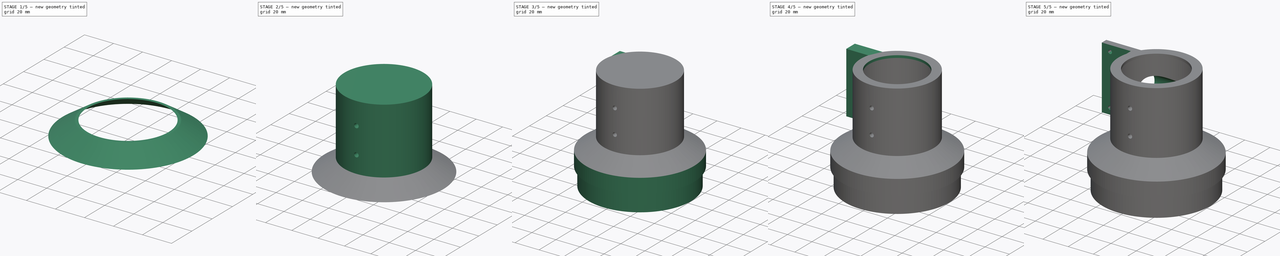
[diagram: build sequence overview — one tinted view per stage of 5, left to right]
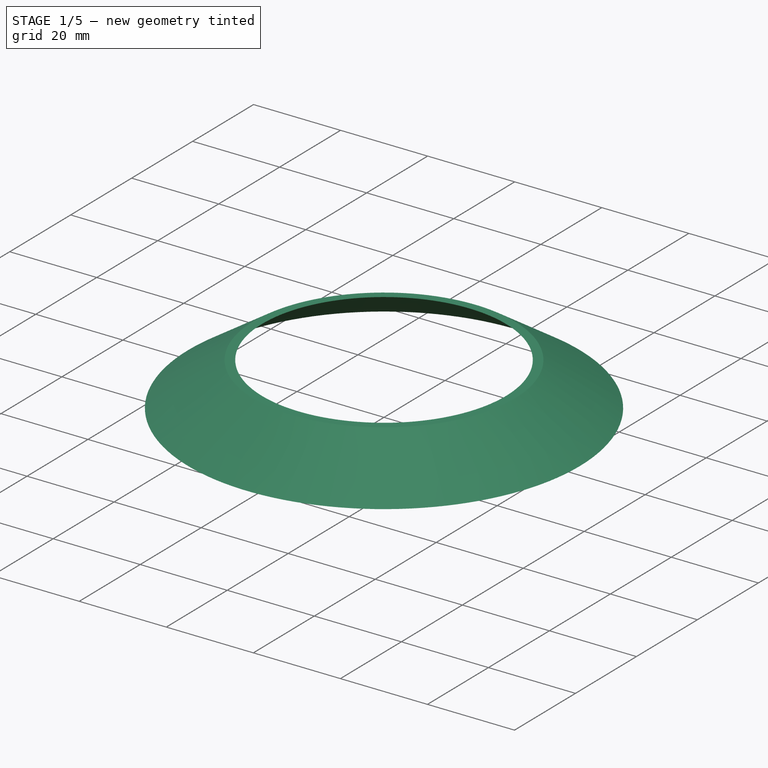
[diagram: stage 1 of 5 — iso view after this stage's code; geometry added in this stage tinted green]
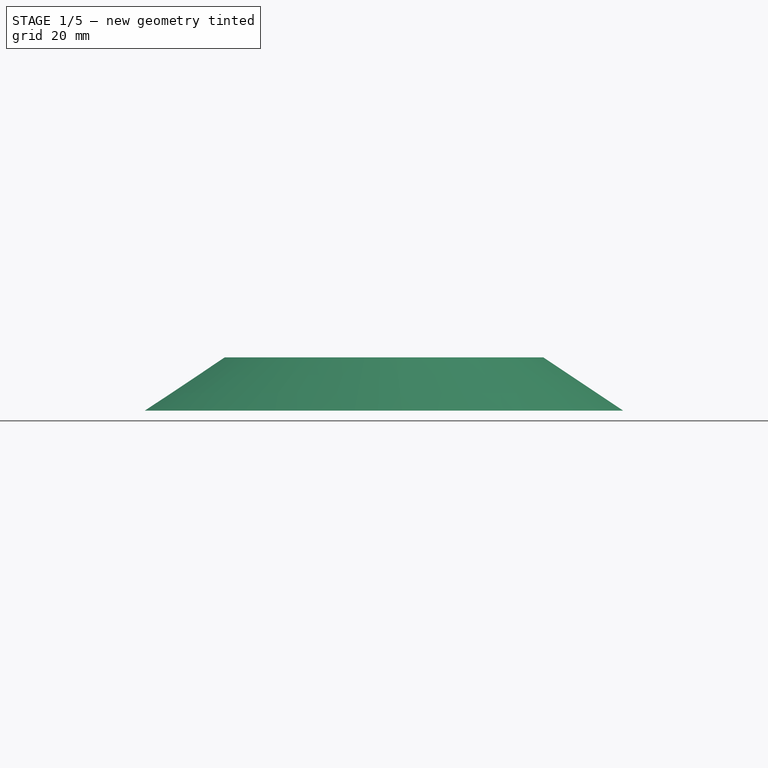
[diagram: stage 1 of 5 — front view after this stage's code; geometry added in this stage tinted green]
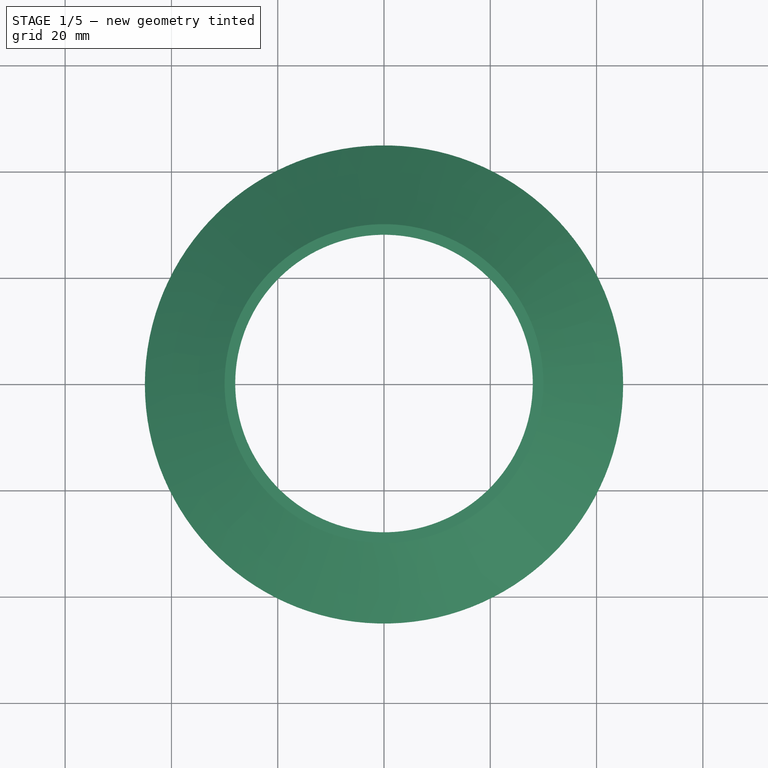
[diagram: stage 1 of 5 — top view after this stage's code; geometry added in this stage tinted green]
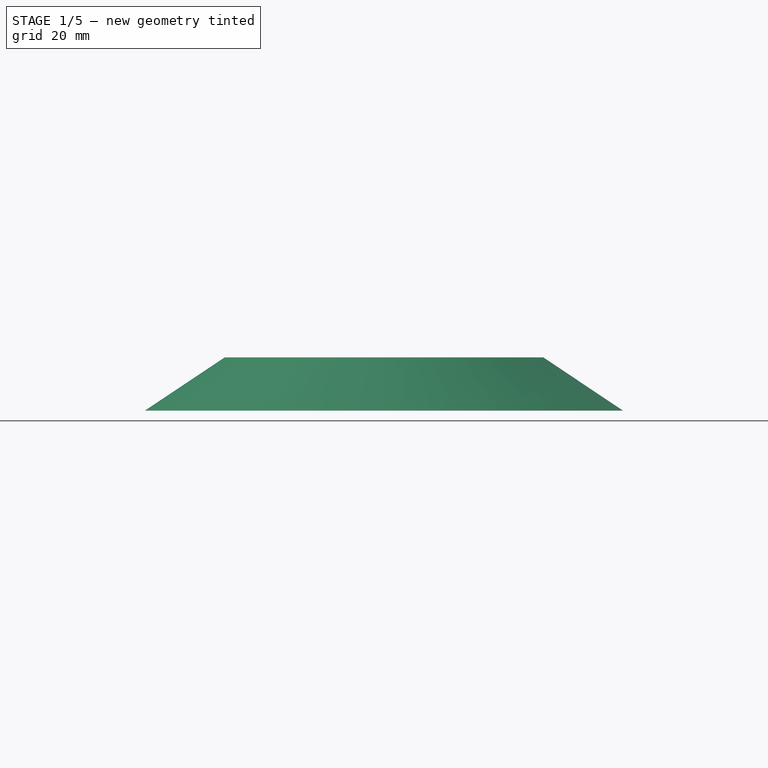
[diagram: stage 1 of 5 — right view after this stage's code; geometry added in this stage tinted green]
FCSTD DOCUMENT  (FreeCAD 1.0R39285 (Git))
Label: crayford-holder
License: All rights reserved
LicenseURL: https://en.wikipedia.org/wiki/All_rights_reserved
objects: Sketcher::SketchObject×16, PartDesign::Pocket×10, PartDesign::Pad×8, Part::Cone×2, Part::Cut×1, PartDesign::FeatureBase×1, PartDesign::Body×1
note: 92 computed .brp shape members not serialized (recipe doc carries the construction recipe); baked Part::Feature solids carry a one-line shape summary decoded from their .brp

FEATURE [Sketcher::SketchObject] Sketch  label="holder-base"
  ArcFitTolerance = 1e-06
  AttachmentSupport = -> [XY_Plane]
  FullyConstrained = false
  MakeInternals = false
  MapMode = 5
  sketch-geometry (1):
    g0: Circle CenterX=0 CenterY=0 CenterZ=0 NormalX=0 NormalY=0 NormalZ=1 AngleXU=0 Radius=30
  constraints (1):
    c: Diameter(g0) = 60
FEATURE [Sketcher::SketchObject] Sketch001
  ArcFitTolerance = 1e-06
  AttachmentSupport = -> [XY_Plane]
  FullyConstrained = true
  MakeInternals = false
  MapMode = 5
  sketch-geometry (4):
    g0: ArcOfCircle CenterX=0 CenterY=0 CenterZ=0 NormalX=0 NormalY=0 NormalZ=1 AngleXU=0 Radius=26 StartAngle=4.53786 EndAngle=4.88692
    g1: ArcOfCircle CenterX=0 CenterY=0 CenterZ=0 NormalX=0 NormalY=0 NormalZ=1 AngleXU=0 Radius=28 StartAngle=4.53786 EndAngle=4.88692
    g2: LineSegment StartX=4.51485 StartY=-25.605 StartZ=0 EndX=4.86215 EndY=-27.5746 EndZ=0
    g3: LineSegment StartX=-4.51485 StartY=-25.605 StartZ=0 EndX=-4.86215 EndY=-27.5746 EndZ=0
  constraints (12):
    c: Radius(g0) = 26
    c: Angle(g0) = 0.349066
    c: Coincident(g0,g-1)
    c: Radius(g1) = 28
    c: Angle(g1) = 0.349066
    c: Coincident(g1,g0)
    c: Coincident(g2,g0)
    c: Coincident(g2,g1)
    c: Coincident(g3,g0)
    c: Coincident(g3,g1)
    c: DistanceY(g0,g0) = 0
    c: DistanceY(g1,g1) = 0
FEATURE [Sketcher::SketchObject] Sketch002
  ArcFitTolerance = 1e-06
  AttachmentSupport = -> [XZ_Plane]
  FullyConstrained = true
  MakeInternals = false
  MapMode = 5
  Placement = pos=(0,0,0) rot=(1,0,0;1.5708rad)
  sketch-geometry (2):
    g0: Circle CenterX=0 CenterY=35 CenterZ=0 NormalX=0 NormalY=0 NormalZ=1 AngleXU=0 Radius=1.7
    g1: Circle CenterX=0 CenterY=15 CenterZ=0 NormalX=0 NormalY=0 NormalZ=1 AngleXU=0 Radius=1.7
  constraints (6):
    c: Diameter(g0) = 3.4
    c: Diameter(g1) = 3.4
    c: PointOnObject(g1,g-2)
    c: DistanceY(g-1,g1) = 15
    c: DistanceY(g-1,g0) = 35
    c: DistanceX(g0,g1) = 0
FEATURE [Sketcher::SketchObject] Sketch003
  ArcFitTolerance = 1e-06
  AttachmentSupport = -> [XY_Plane]
  FullyConstrained = true
  MakeInternals = false
  MapMode = 5
  sketch-geometry (1):
    g0: Circle CenterX=0 CenterY=0 CenterZ=0 NormalX=0 NormalY=0 NormalZ=1 AngleXU=0 Radius=28
  constraints (2):
    c: Diameter(g0) = 56
    c: Coincident(g0,g-1)
FEATURE [Sketcher::SketchObject] Sketch004
  ArcFitTolerance = 1e-06
  AttachmentSupport = -> [XY_Plane]
  FullyConstrained = true
  MakeInternals = false
  MapMode = 5
  sketch-geometry (1):
    g0: Circle CenterX=0 CenterY=0 CenterZ=0 NormalX=0 NormalY=0 NormalZ=1 AngleXU=0 Radius=23
  constraints (3):
    c: Diameter(g0) = 46
    c: DistanceX(g0,g-1) = 0
    c: DistanceY(g-1,g0) = 0
FEATURE [Sketcher::SketchObject] Sketch005
  ArcFitTolerance = 1e-06
  AttachmentSupport = -> [YZ_Plane]
  FullyConstrained = true
  MakeInternals = false
  MapMode = 5
  Placement = pos=(0,0,0) rot=(0.57735,0.57735,0.57735;2.0944rad)
  sketch-geometry (4):
    g0: LineSegment StartX=21.2 StartY=24.25 StartZ=0 EndX=23.95 EndY=24.25 EndZ=0
    g1: LineSegment StartX=23.95 StartY=24.25 StartZ=0 EndX=23.95 EndY=27.75 EndZ=0
    g2: LineSegment StartX=23.95 StartY=27.75 StartZ=0 EndX=21.2 EndY=27.75 EndZ=0
    g3: ArcOfCircle CenterX=21.2 CenterY=26 CenterZ=0 NormalX=0 NormalY=0 NormalZ=1 AngleXU=0 Radius=1.75 StartAngle=1.5708 EndAngle=4.71239
  constraints (13):
    c: Coincident(g0,g1)
    c: Coincident(g1,g2)
    c: Vertical(g1)
    c: Horizontal(g0)
    c: Horizontal(g2)
    c: Distance(g2,g1) = 2.75
    c: Distance(g0,g2) = 3.5
    c: DistanceY(g-1,g2) = 27.75
    c: Coincident(g3,g2)
    c: Coincident(g3,g0)
    c: DistanceY(g-1,g3) = 26
    c: DistanceX(g-1,g3) = 21.2
    c: DistanceY(g0,g2) = 3.5
FEATURE [Sketcher::SketchObject] Sketch007
  ArcFitTolerance = 1e-06
  AttachmentSupport = -> [XY_Plane]
  FullyConstrained = true
  MakeInternals = false
  MapMode = 5
  sketch-geometry (1):
    g0: Circle CenterX=0 CenterY=0 CenterZ=0 NormalX=0 NormalY=0 NormalZ=1 AngleXU=0 Radius=45
  constraints (2):
    c: Diameter(g0) = 90
    c: Coincident(g0,g-1)
FEATURE [Sketcher::SketchObject] Sketch008
  ArcFitTolerance = 1e-06
  AttachmentSupport = -> [XY_Plane]
  FullyConstrained = true
  MakeInternals = false
  MapMode = 5
  sketch-geometry (1):
    g0: Circle CenterX=0 CenterY=0 CenterZ=0 NormalX=0 NormalY=0 NormalZ=1 AngleXU=0 Radius=42.75
  constraints (2):
    c: Diameter(g0) = 85.5
    c: Coincident(g0,g-1)
FEATURE [Part::Cone] Cone
  Angle = 360
  AttacherType = Attacher::AttachEngine3D
  Height = 10
  Placement = pos=(0,0,-8) rot=(0,0,1;0rad)
  Radius1 = 45
  Radius2 = 30
FEATURE [Part::Cone] Cone001
  Angle = 360
  AttacherType = Attacher::AttachEngine3D
  Height = 10
  Placement = pos=(0,0,-8) rot=(0,0,1;0rad)
  Radius1 = 43
  Radius2 = 28
FEATURE [Part::Cut] Cut
  Base = -> Cone
  Refine = true
  Tool = -> Cone001
FEATURE [PartDesign::FeatureBase] BaseFeature
  BaseFeature = -> Cut
  Suppressed = false
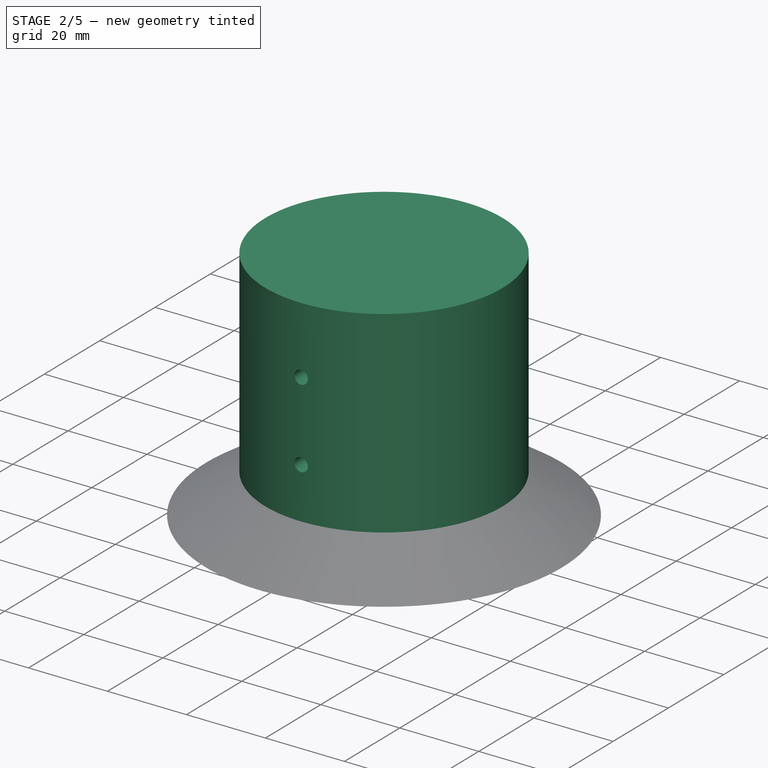
[diagram: stage 2 of 5 — iso view after this stage's code; geometry added in this stage tinted green]
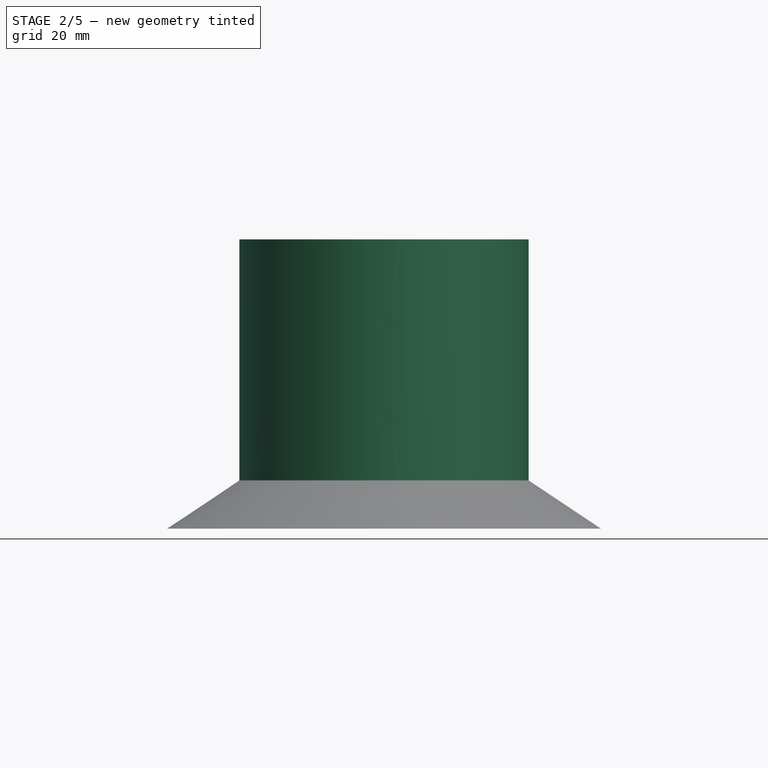
[diagram: stage 2 of 5 — front view after this stage's code; geometry added in this stage tinted green]
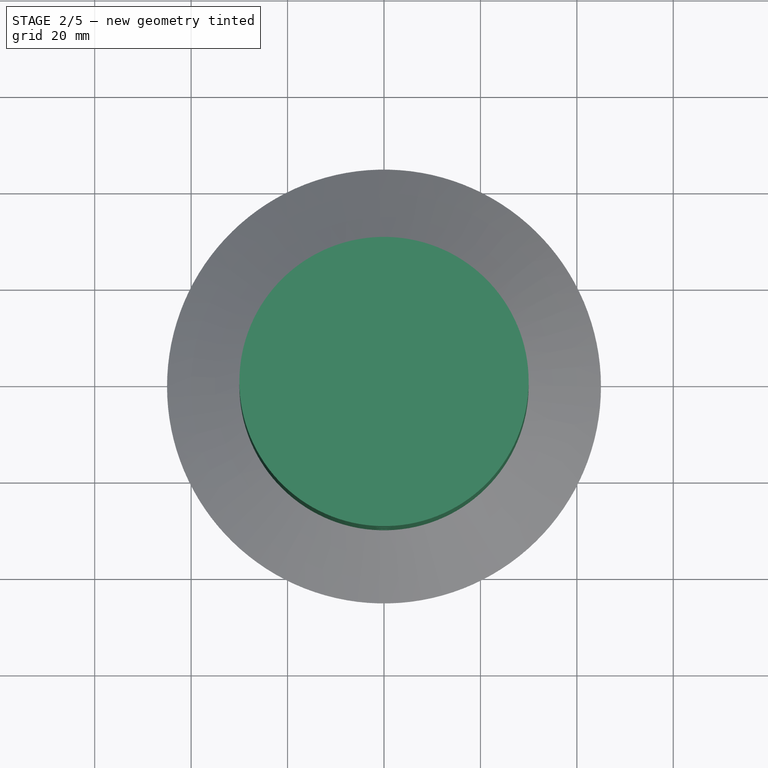
[diagram: stage 2 of 5 — top view after this stage's code; geometry added in this stage tinted green]
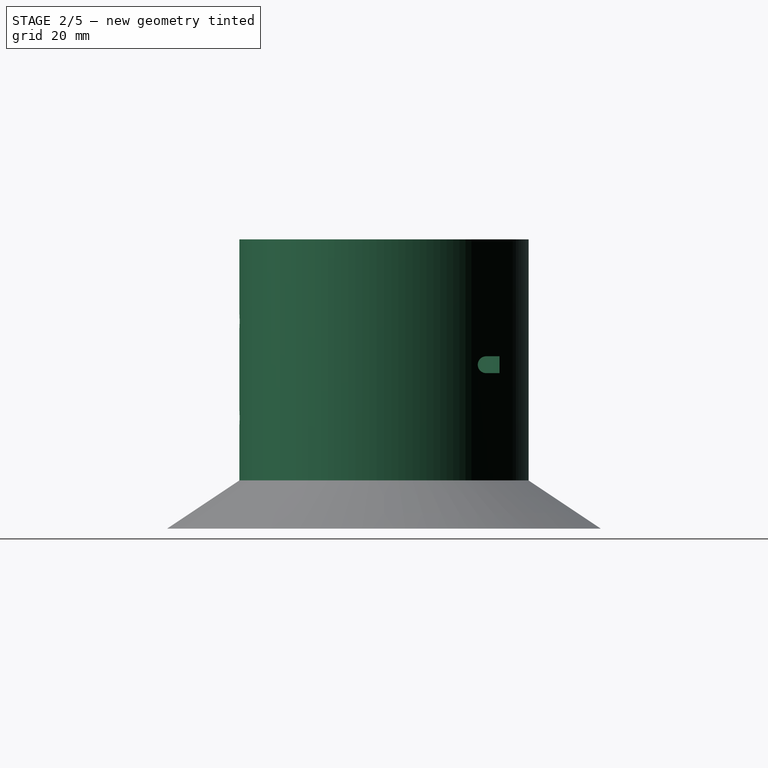
[diagram: stage 2 of 5 — right view after this stage's code; geometry added in this stage tinted green]
FEATURE [PartDesign::Pad] Pad
  BaseFeature = -> BaseFeature
  Direction = (0,0,1)
  Length = 52
  Length2 = 10
  Profile = -> Sketch
  ReferenceAxis = -> Sketch [N_Axis]
  Refine = true
  Suppressed = false
  Type = 0
FEATURE [PartDesign::Pocket] Pocket
  BaseFeature = -> Pad
  Direction = (0,0,-1)
  Length = 50
  Length2 = 5
  Profile = -> Sketch003
  ReferenceAxis = -> Sketch003 [N_Axis]
  Refine = true
  Reversed = true
  Suppressed = false
  Type = 0
FEATURE [PartDesign::Pad] Pad001
  BaseFeature = -> Pocket
  Direction = (0,0,1)
  Length = 50
  Length2 = 10
  Profile = -> Sketch001
  ReferenceAxis = -> Sketch001 [N_Axis]
  Refine = true
  Suppressed = false
  Type = 0
FEATURE [PartDesign::Pocket] Pocket001
  BaseFeature = -> Pad001
  Direction = (0,1,-2e-16)
  Length = 32
  Length2 = 5
  Profile = -> Sketch002
  ReferenceAxis = -> Sketch002 [N_Axis]
  Refine = true
  Reversed = true
  Suppressed = false
  Type = 0
FEATURE [PartDesign::Pocket] Pocket003
  BaseFeature = -> Pocket001
  Direction = (-1,0,0)
  Length = 53
  Length2 = 5
  Profile = -> Sketch005
  ReferenceAxis = -> Sketch005 [N_Axis]
  Refine = true
  Reversed = true
  Suppressed = false
  Type = 0
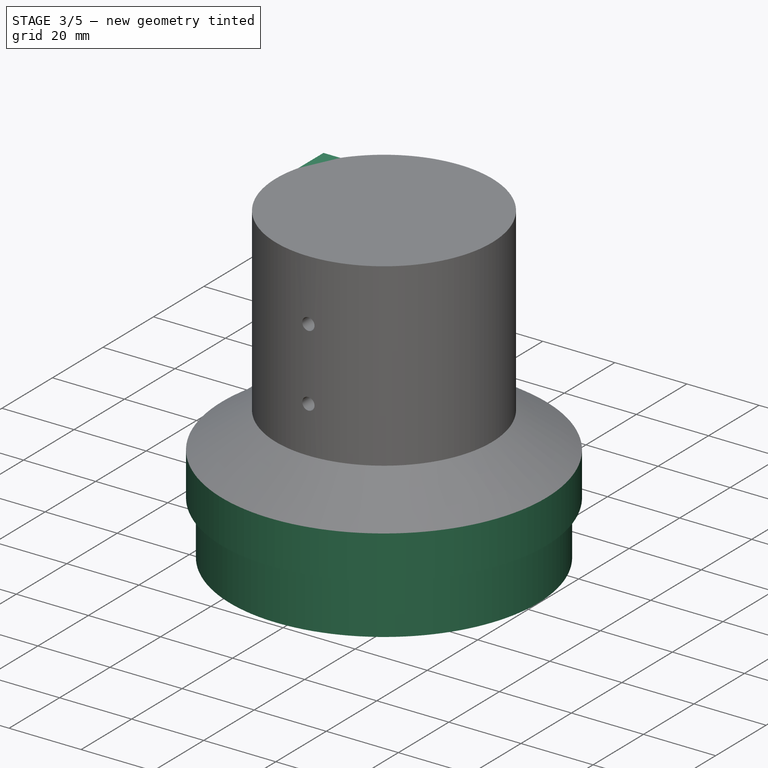
[diagram: stage 3 of 5 — iso view after this stage's code; geometry added in this stage tinted green]
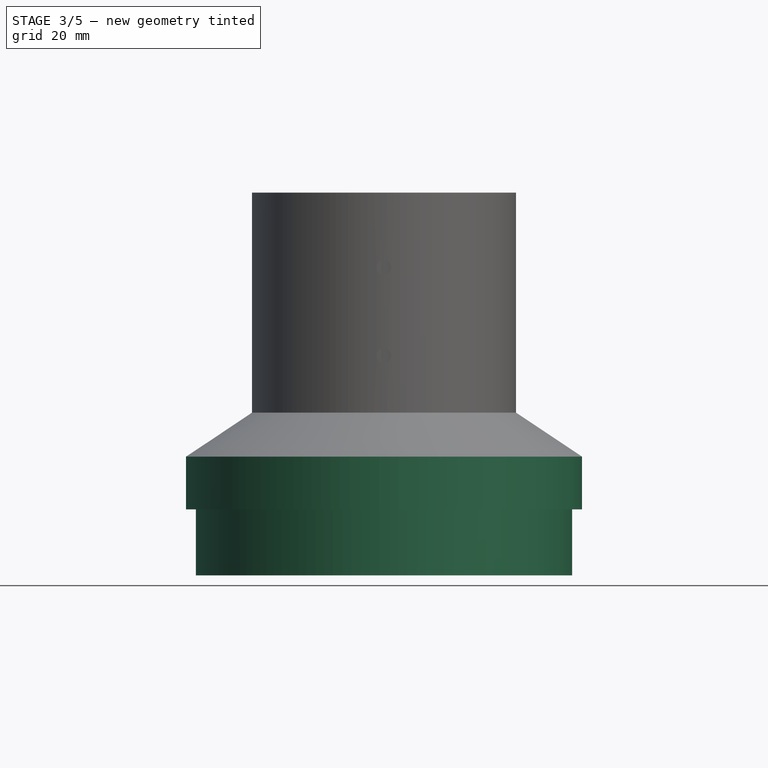
[diagram: stage 3 of 5 — front view after this stage's code; geometry added in this stage tinted green]
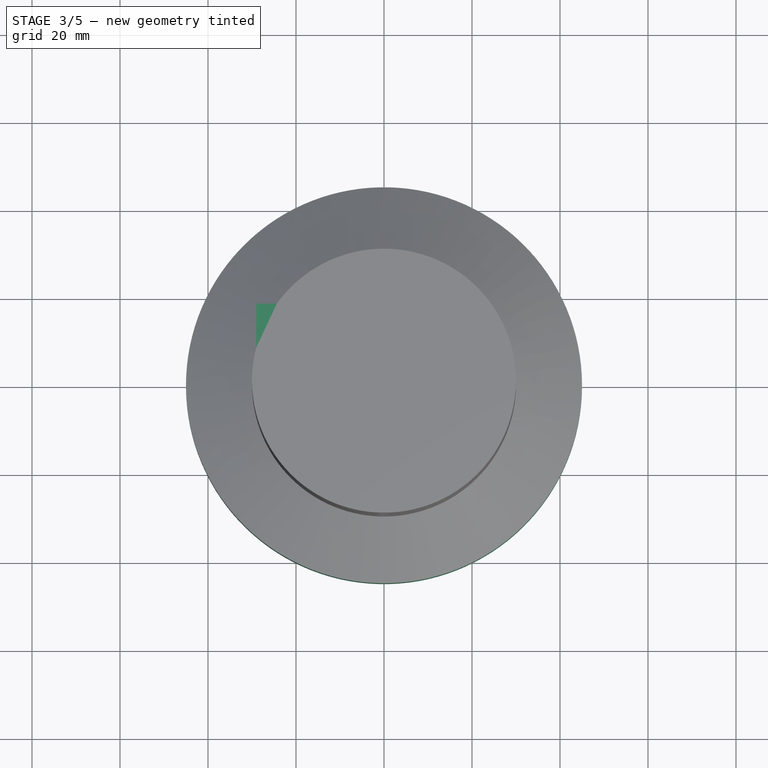
[diagram: stage 3 of 5 — top view after this stage's code; geometry added in this stage tinted green]
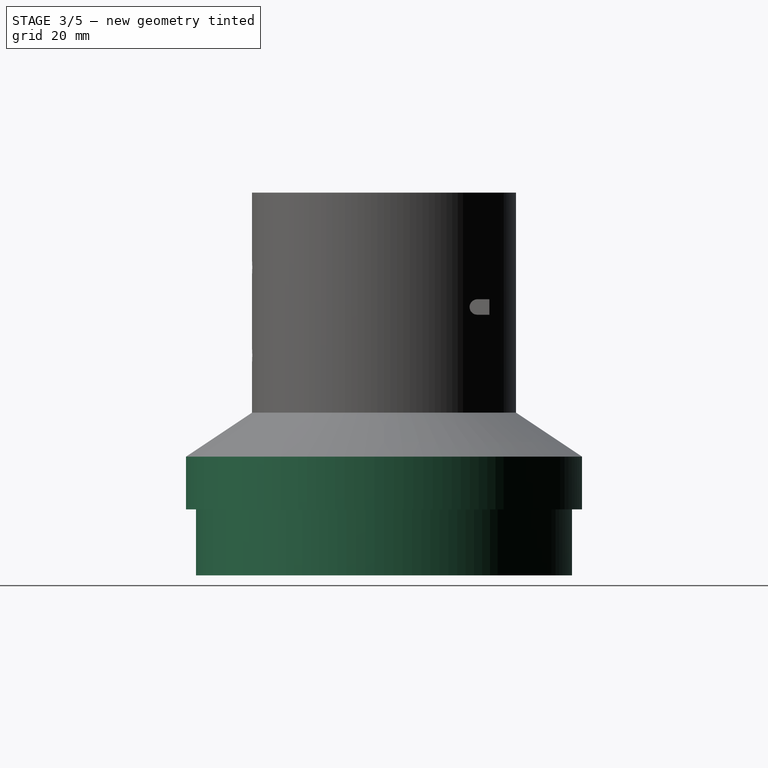
[diagram: stage 3 of 5 — right view after this stage's code; geometry added in this stage tinted green]
FEATURE [PartDesign::Pad] Pad002
  BaseFeature = -> Pocket003
  Direction = (0,0,1)
  Length = 20
  Length2 = -8
  Profile = -> Sketch007
  ReferenceAxis = -> Sketch007 [N_Axis]
  Refine = true
  Reversed = true
  Suppressed = false
  Type = 4
FEATURE [PartDesign::Pad] Pad003
  BaseFeature = -> Pad002
  Direction = (0,0,1)
  Length = 35
  Length2 = -8
  Profile = -> Sketch008
  ReferenceAxis = -> Sketch008 [N_Axis]
  Refine = true
  Reversed = true
  Suppressed = false
  Type = 4
FEATURE [Sketcher::SketchObject] Sketch009
  ArcFitTolerance = 1e-06
  AttachmentSupport = -> [Pad003]
  FullyConstrained = true
  MakeInternals = false
  MapMode = 5
  Placement = pos=(0,0,-35) rot=(1,0,0;3.14159rad)
  sketch-geometry (1):
    g0: Circle CenterX=0 CenterY=0 CenterZ=0 NormalX=0 NormalY=0 NormalZ=1 AngleXU=0 Radius=41
  constraints (2):
    c: Diameter(g0) = 82
    c: Coincident(g0,g-1)
FEATURE [PartDesign::Pocket] Pocket005
  BaseFeature = -> Pad003
  Direction = (0,0,1)
  Length = 27
  Length2 = 5
  Profile = -> Sketch009
  ReferenceAxis = -> Sketch009 [N_Axis]
  Refine = true
  Suppressed = false
  Type = 0
FEATURE [Sketcher::SketchObject] Sketch012
  ArcFitTolerance = 1e-06
  AttachmentSupport = -> [XY_Plane]
  FullyConstrained = true
  MakeInternals = false
  MapMode = 5
  sketch-geometry (3):
    g0: LineSegment StartX=-29.042 StartY=7.5 StartZ=0 EndX=-29.042 EndY=17.5 EndZ=0
    g1: ArcOfCircle CenterX=0 CenterY=-0.0208815 CenterZ=0 NormalX=0 NormalY=0 NormalZ=1 AngleXU=0 Radius=30 StartAngle=2.51791 EndAngle=2.88819
    g2: LineSegment StartX=-29.042 StartY=17.5 StartZ=0 EndX=-24.352 EndY=17.5 EndZ=0
  constraints (10):
    c: Distance(g0) = 10
    c: Vertical(g0)
    c: DistanceY(g-1,g0) = 7.5
    c: PointOnObject(g1,g-2)
    c: Coincident(g1,g0)
    c: Coincident(g2,g0)
    c: Horizontal(g2)
    c: DistanceX(g0,g1) = 4.69
    c: Radius(g1) = 30
    c: Coincident(g2,g1)
FEATURE [PartDesign::Pad] Pad004
  BaseFeature = -> Pocket005
  Direction = (0,0,1)
  Length = 52
  Length2 = -2
  Profile = -> Sketch012
  ReferenceAxis = -> Sketch012 [N_Axis]
  Refine = true
  Suppressed = false
  Type = 4
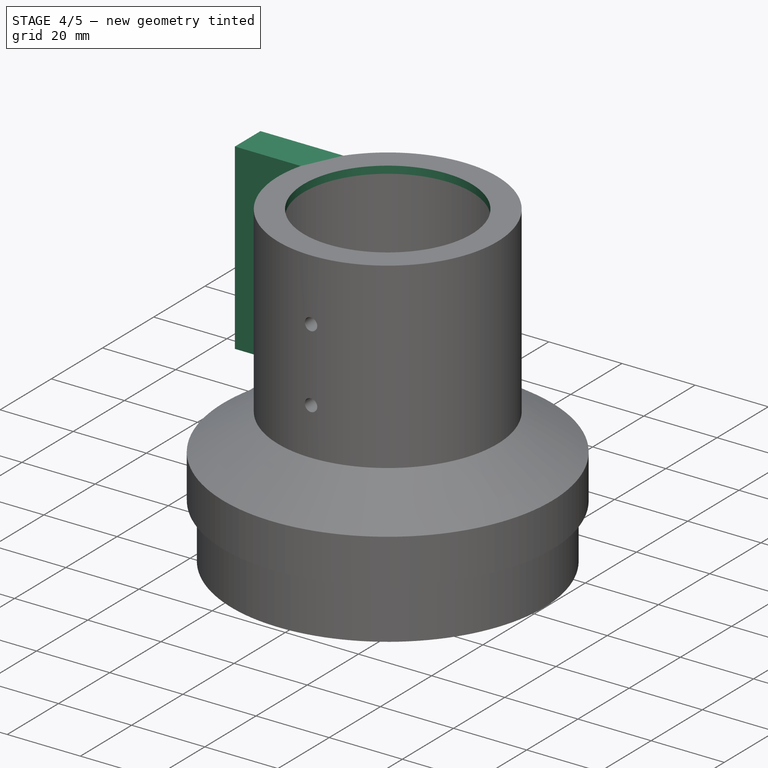
[diagram: stage 4 of 5 — iso view after this stage's code; geometry added in this stage tinted green]
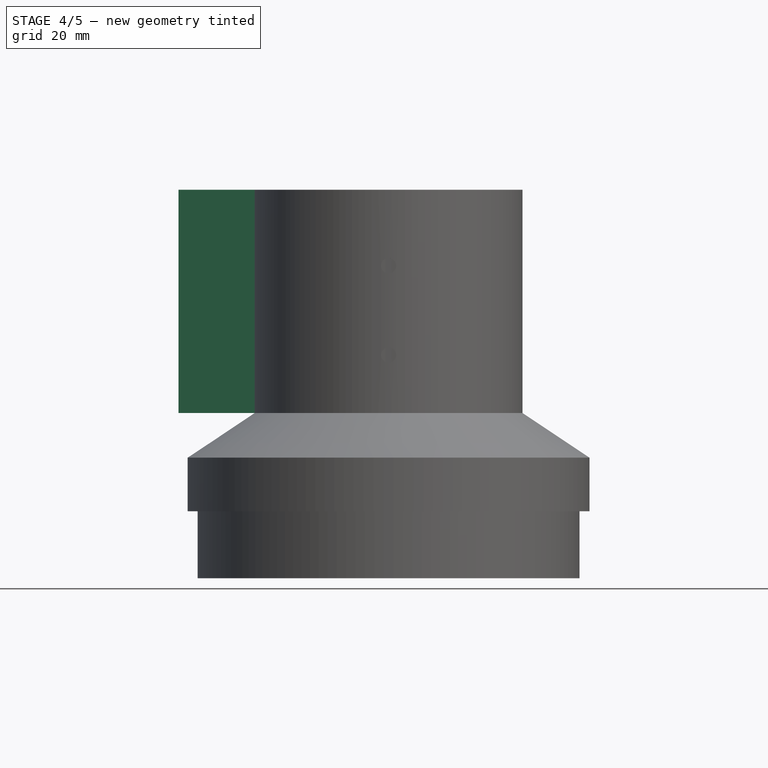
[diagram: stage 4 of 5 — front view after this stage's code; geometry added in this stage tinted green]
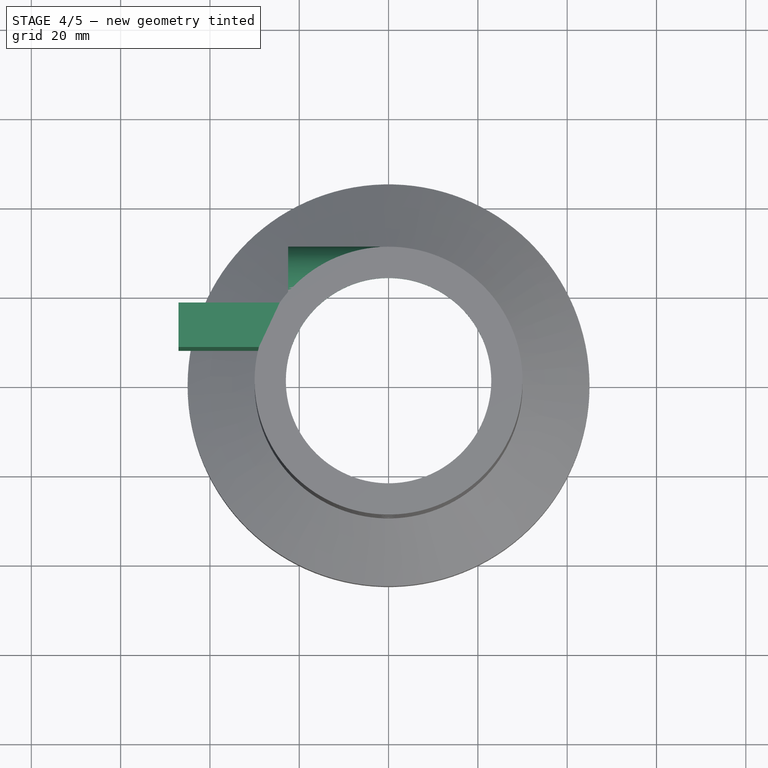
[diagram: stage 4 of 5 — top view after this stage's code; geometry added in this stage tinted green]
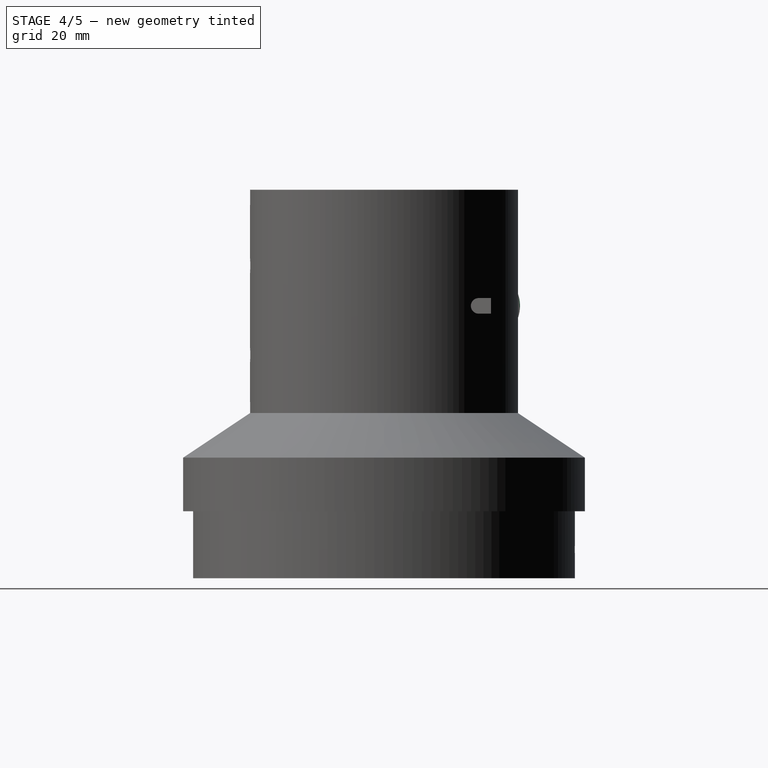
[diagram: stage 4 of 5 — right view after this stage's code; geometry added in this stage tinted green]
FEATURE [Sketcher::SketchObject] Sketch014
  ArcFitTolerance = 1e-06
  AttachmentSupport = -> [XZ_Plane]
  FullyConstrained = true
  MakeInternals = false
  MapMode = 5
  Placement = pos=(0,0,0) rot=(1,0,0;1.5708rad)
  sketch-geometry (1):
    g0: Circle CenterX=0 CenterY=-28.5 CenterZ=0 NormalX=0 NormalY=0 NormalZ=1 AngleXU=0 Radius=1.5
  constraints (3):
    c: Diameter(g0) = 3
    c: DistanceX(g0,g-1) = 0
    c: DistanceY(g0,g-1) = 28.5
FEATURE [PartDesign::Pocket] Pocket007
  BaseFeature = -> Pad004
  Direction = (0,0,-1)
  Length = 53
  Length2 = 5
  Profile = -> Sketch004
  ReferenceAxis = -> Sketch004 [N_Axis]
  Refine = true
  Reversed = true
  Suppressed = false
  Type = 0
FEATURE [PartDesign::Pad] Pad005
  BaseFeature = -> Pocket007
  Direction = (-1,0,0)
  Length = 18
  Length2 = 10
  Profile = -> Pocket007 [Face11]
  Refine = true
  Suppressed = false
  Type = 0
FEATURE [PartDesign::Pocket] Pocket009
  BaseFeature = -> Pad005
  Direction = (0,1,-2e-16)
  Length = 43
  Length2 = 5
  Profile = -> Sketch014
  ReferenceAxis = -> Sketch014 [N_Axis]
  Refine = true
  Suppressed = false
  Type = 0
FEATURE [Sketcher::SketchObject] Sketch015
  ArcFitTolerance = 1e-06
  FullyConstrained = true
  MakeInternals = false
  MapMode = 5
  Placement = pos=(0,0,0) rot=(0.57735,0.57735,0.57735;2.0944rad)
  sketch-geometry (1):
    g0: Circle CenterX=22.2 CenterY=26 CenterZ=0 NormalX=0 NormalY=0 NormalZ=1 AngleXU=0 Radius=8.25
  constraints (3):
    c: Diameter(g0) = 16.5
    c: DistanceY(g-1,g0) = 26
    c: DistanceX(g-1,g0) = 22.2
FEATURE [PartDesign::Pad] Pad008
  BaseFeature = -> Pocket009
  Direction = (1,1e-16,-1e-16)
  Length = 22.5
  Length2 = -2
  Profile = -> Sketch015
  ReferenceAxis = -> Sketch015 [N_Axis]
  Refine = true
  Reversed = true
  Suppressed = false
  Type = 4
FEATURE [Sketcher::SketchObject] Sketch017
  ArcFitTolerance = 1e-06
  AttachmentSupport = -> [XY_Plane]
  FullyConstrained = true
  MakeInternals = false
  MapMode = 5
  sketch-geometry (2):
    g0: ArcOfCircle CenterX=0 CenterY=0 CenterZ=0 NormalX=0 NormalY=0 NormalZ=1 AngleXU=0 Radius=28 StartAngle=2.8e-15 EndAngle=3.14159
    g1: LineSegment StartX=-28 StartY=3.40118e-11 StartZ=0 EndX=28 EndY=7.84e-14 EndZ=0
  constraints (6):
    c: Radius(g0) = 28
    c: Coincident(g0,g-1)
    c: PointOnObject(g0,g-1)
    c: PointOnObject(g0,g-1)
    c: Coincident(g1,g0)
    c: Coincident(g1,g0)
FEATURE [PartDesign::Pocket] Pocket012
  BaseFeature = -> Pad008
  Direction = (0,0,-1)
  Length = 35
  Length2 = -17
  Profile = -> Sketch017
  ReferenceAxis = -> Sketch017 [N_Axis]
  Refine = true
  Reversed = true
  Suppressed = false
  Type = 4
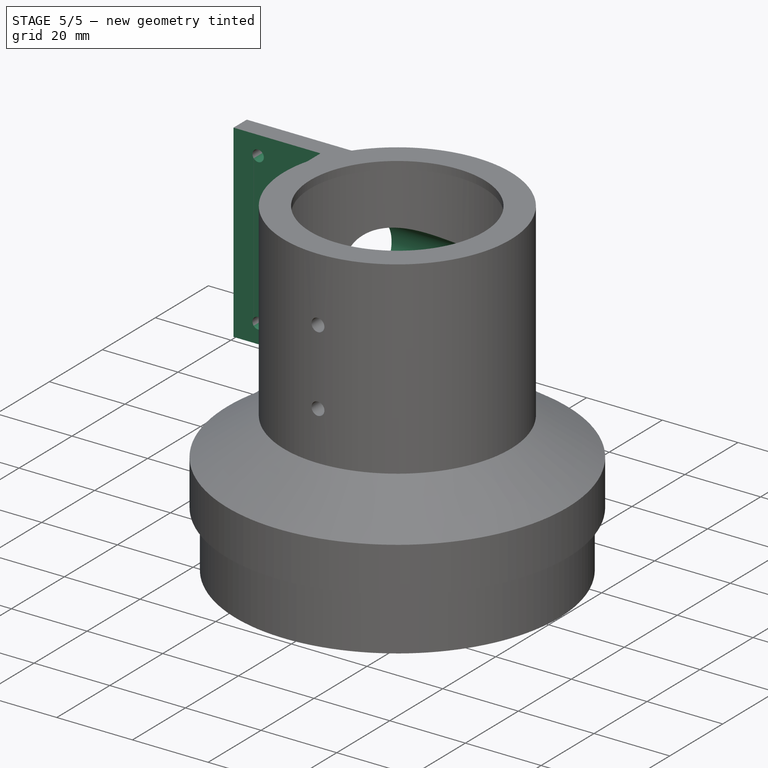
[diagram: stage 5 of 5 — iso view after this stage's code; geometry added in this stage tinted green]
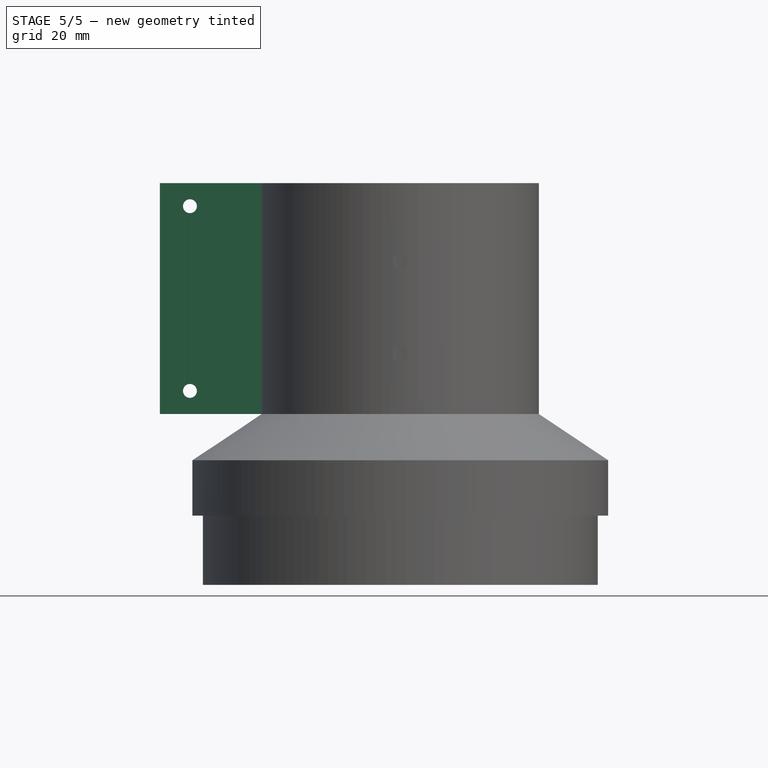
[diagram: stage 5 of 5 — front view after this stage's code; geometry added in this stage tinted green]
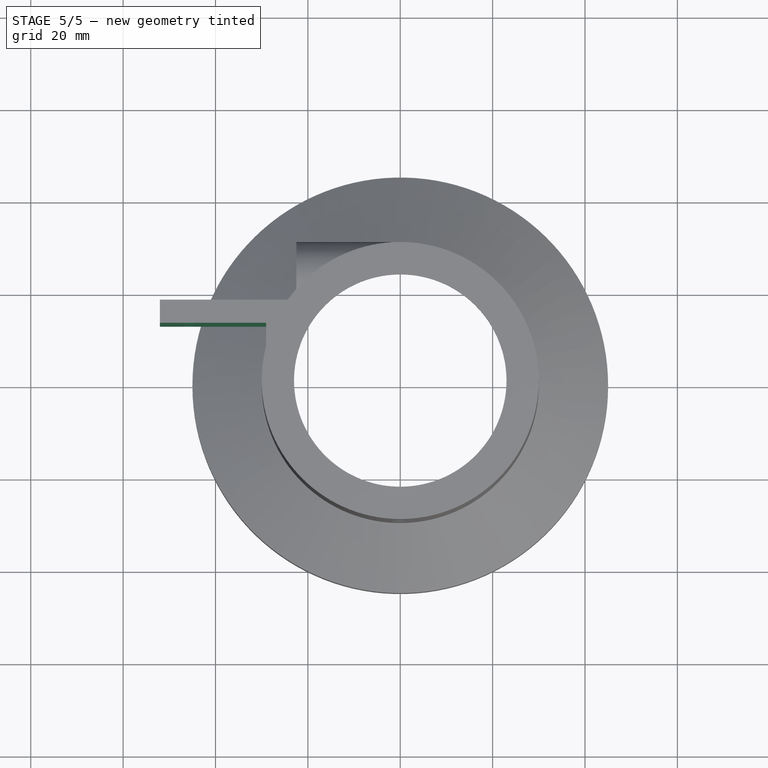
[diagram: stage 5 of 5 — top view after this stage's code; geometry added in this stage tinted green]
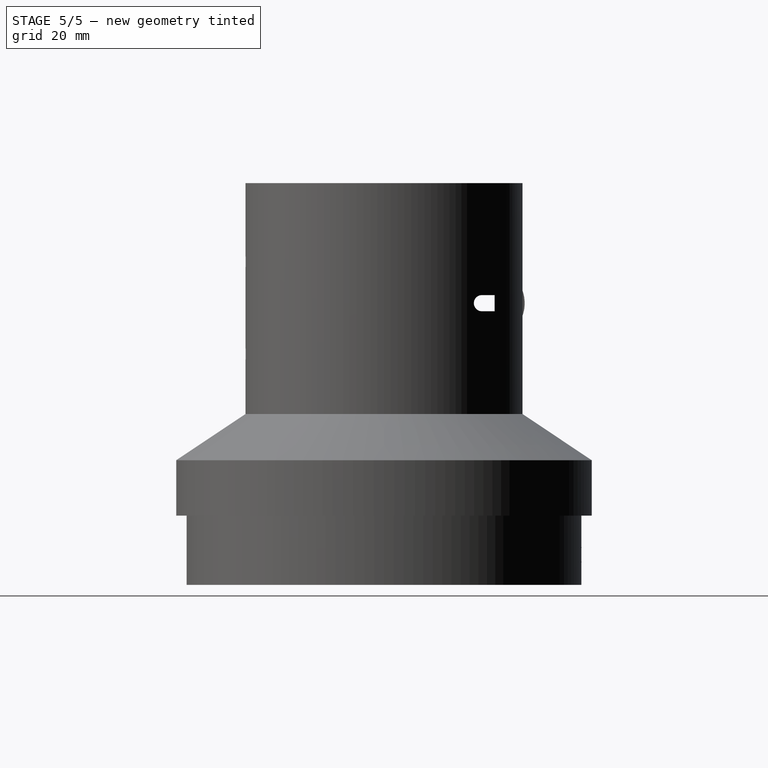
[diagram: stage 5 of 5 — right view after this stage's code; geometry added in this stage tinted green]
FEATURE [Sketcher::SketchObject] Sketch018
  ArcFitTolerance = 1e-06
  AttachmentSupport = -> [Pocket012]
  FullyConstrained = true
  MakeInternals = false
  MapMode = 5
  Placement = pos=(-22.5,-9.9e-15,0) rot=(0.57735,-0.57735,-0.57735;2.0944rad)
  sketch-geometry (1):
    g0: Circle CenterX=-22.2 CenterY=26 CenterZ=0 NormalX=0 NormalY=0 NormalZ=1 AngleXU=0 Radius=7.75
  constraints (3):
    c: Diameter(g0) = 15.5
    c: DistanceX(g-1,g0) = -22.2
    c: DistanceY(g-1,g0) = 26
FEATURE [PartDesign::Pocket] Pocket013
  BaseFeature = -> Pocket012
  Direction = (1,0,0)
  Length = 20
  Length2 = 25
  Midplane = true
  Profile = -> Sketch018
  ReferenceAxis = -> Sketch018 [N_Axis]
  Refine = true
  Suppressed = false
  Type = 4
FEATURE [Sketcher::SketchObject] Sketch019
  ArcFitTolerance = 1e-06
  AttachmentSupport = -> [Pocket013]
  FullyConstrained = true
  MakeInternals = false
  MapMode = 5
  Placement = pos=(0,17.5,0) rot=(0,0.707107,0.707107;3.14159rad)
  sketch-geometry (2):
    g0: Circle CenterX=45.54 CenterY=7 CenterZ=0 NormalX=0 NormalY=0 NormalZ=1 AngleXU=0 Radius=1.5
    g1: Circle CenterX=45.54 CenterY=47 CenterZ=0 NormalX=0 NormalY=0 NormalZ=1 AngleXU=0 Radius=1.5
  constraints (6):
    c: Diameter(g0) = 3
    c: DistanceX(g-1,g0) = 45.54
    c: DistanceY(g-1,g0) = 7
    c: Diameter(g1) = 3
    c: DistanceY(g-1,g1) = 47
    c: DistanceX(g1,g0) = 0
FEATURE [PartDesign::Pocket] Pocket014
  BaseFeature = -> Pocket013
  Direction = (0,-1,2e-16)
  Length = 10
  Length2 = 5
  Profile = -> Sketch019
  ReferenceAxis = -> Sketch019 [N_Axis]
  Refine = true
  Suppressed = false
  Type = 0
FEATURE [Sketcher::SketchObject] Sketch020
  ArcFitTolerance = 1e-06
  AttachmentSupport = -> [Pocket014]
  FullyConstrained = true
  MakeInternals = false
  MapMode = 5
  Placement = pos=(-47.042,0,0) rot=(0.57735,-0.57735,-0.57735;2.0944rad)
  sketch-geometry (4):
    g0: LineSegment StartX=-12.5 StartY=52 StartZ=0 EndX=-12.5 EndY=2 EndZ=0
    g1: LineSegment StartX=-12.5 StartY=2 StartZ=0 EndX=-7.5 EndY=2 EndZ=0
    g2: LineSegment StartX=-7.5 StartY=2 StartZ=0 EndX=-7.5 EndY=52 EndZ=0
    g3: LineSegment StartX=-7.5 StartY=52 StartZ=0 EndX=-12.5 EndY=52 EndZ=0
  constraints (12):
    c: Coincident(g0,g1)
    c: Coincident(g1,g2)
    c: Coincident(g2,g3)
    c: Coincident(g3,g0)
    c: Vertical(g0)
    c: Vertical(g2)
    c: Horizontal(g1)
    c: Horizontal(g3)
    c: Distance(g0,g2) = 5
    c: Distance(g1,g3) = 50
    c: DistanceY(g-1,g1) = 2
    c: DistanceX(g1,g-1) = 7.5
FEATURE [PartDesign::Pocket] Pocket015
  BaseFeature = -> Pocket014
  Direction = (1,0,0)
  Length = 18
  Length2 = 5
  Profile = -> Sketch020
  ReferenceAxis = -> Sketch020 [N_Axis]
  Refine = true
  Suppressed = false
  Type = 0
FEATURE [PartDesign::Pad] Pad009
  BaseFeature = -> Pocket015
  Direction = (-1,0,0)
  Length = 5
  Length2 = 10
  Profile = -> Pocket015 [Face20]
  Refine = true
  Suppressed = false
  Type = 0
FEATURE [PartDesign::Body] Body  label="crayford-holder"
  AllowCompound = false
  BaseFeature = -> Cut
  Group = -> [BaseFeature,Sketch,Pad,Sketch001,Sketch002,Sketch003,Pocket,Pad001,Pocket001,Sketch004,Sketch005,Pocket003,Sketch007,Sketch008,Pad002,Pad003,Sketch009,Pocket005,Sketch012,Pad004,Sketch014,Pocket007,Pad005,Pocket009,Sketch015,Pad008,Sketch017,Pocket012,Sketch018,Pocket013,Sketch019,Pocket014,Sketch020,Pocket015,Pad009]
  Origin = -> Origin
  Tip = -> Pad009
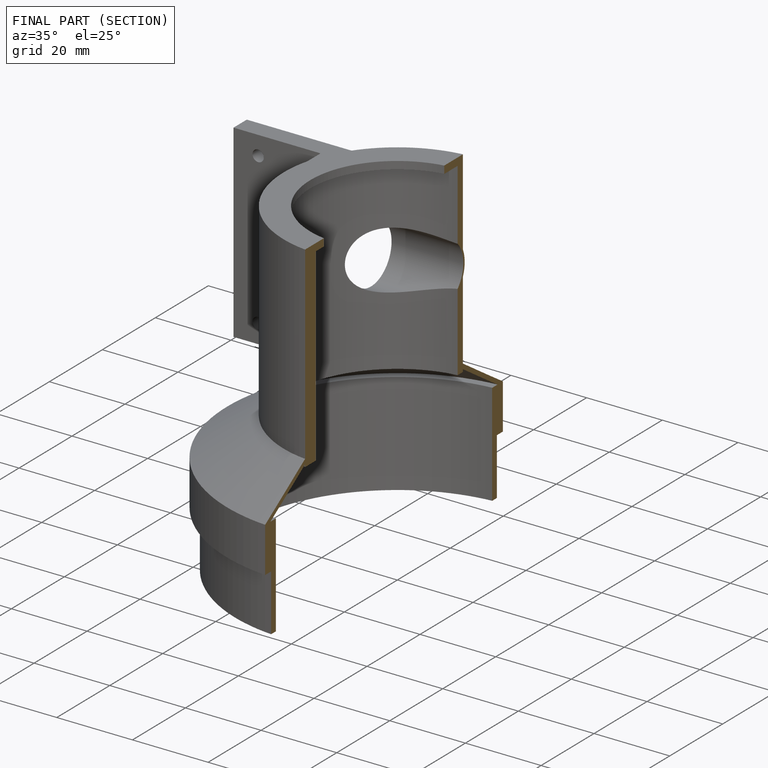
[diagram: finished part — half-section view (interior)]
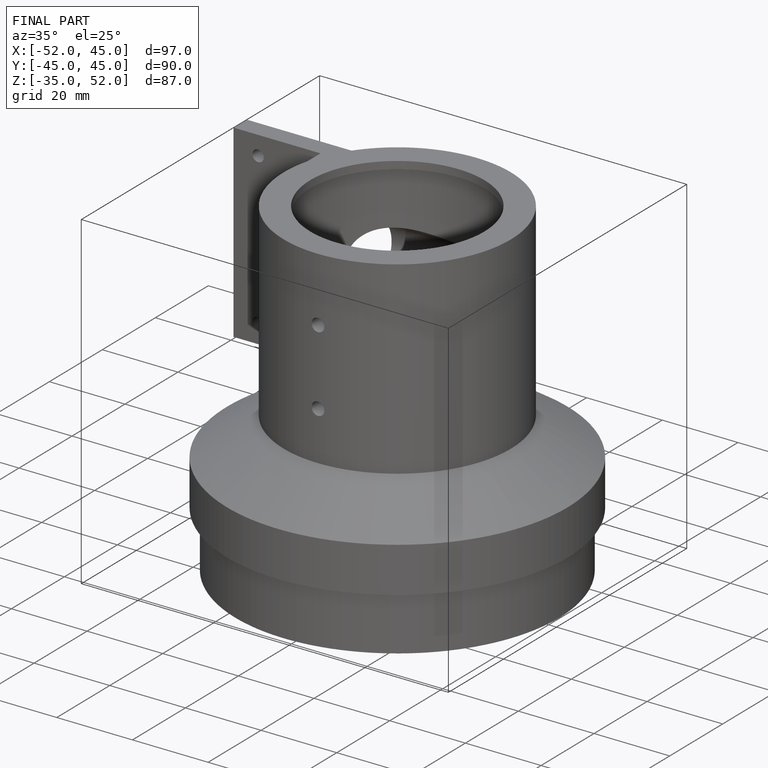
[diagram: finished part — iso view with bounding-box wireframe]
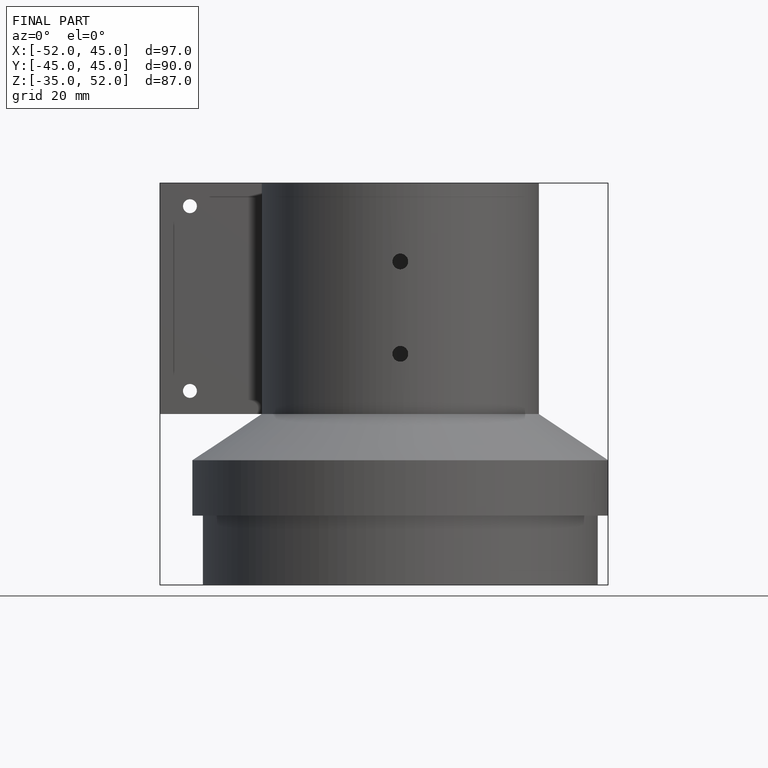
[diagram: finished part — front view with bounding-box wireframe]
